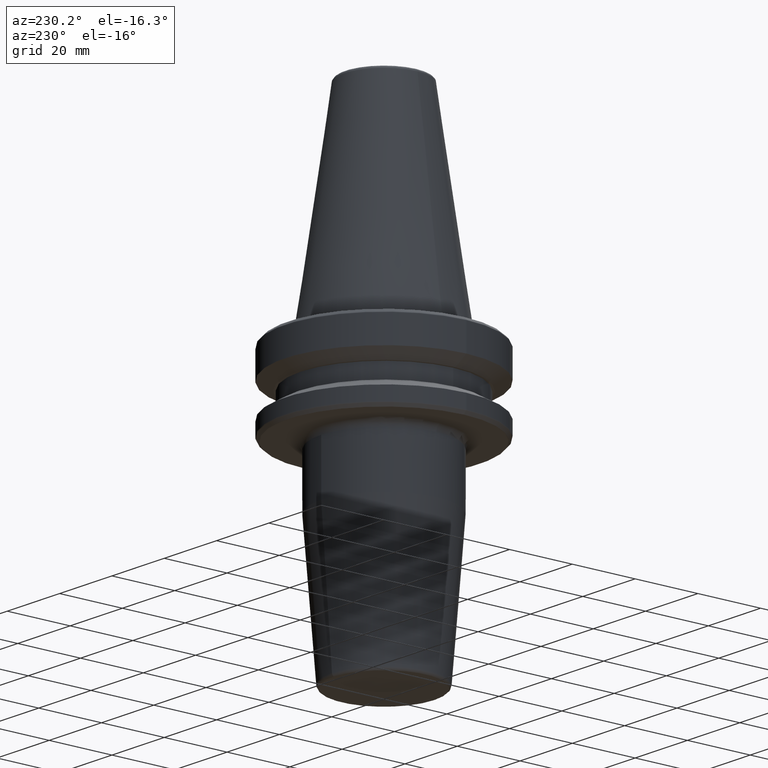
[diagram: clean part render]
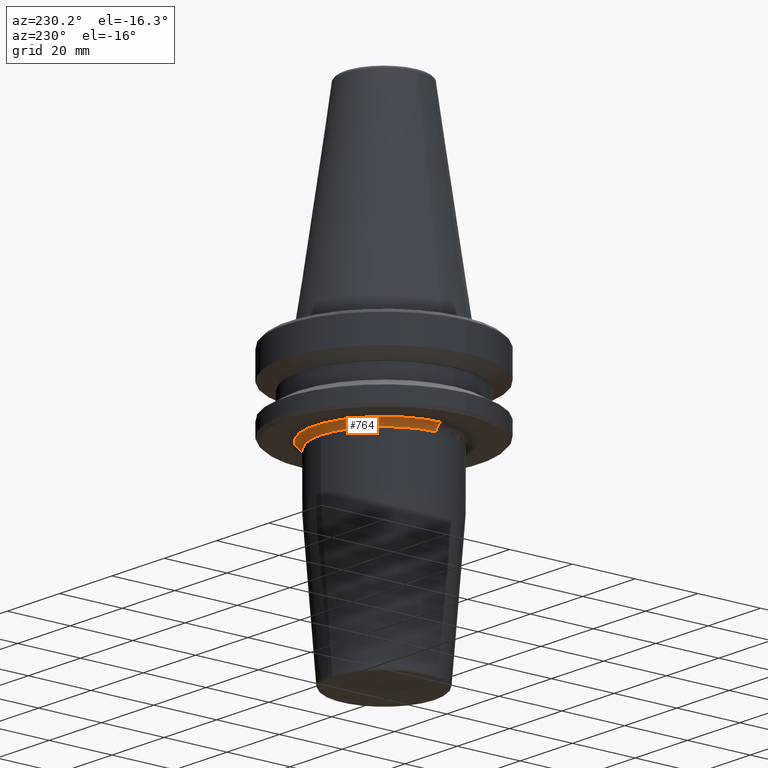
[diagram: same view with one face highlighted and labeled with its STEP entity id]
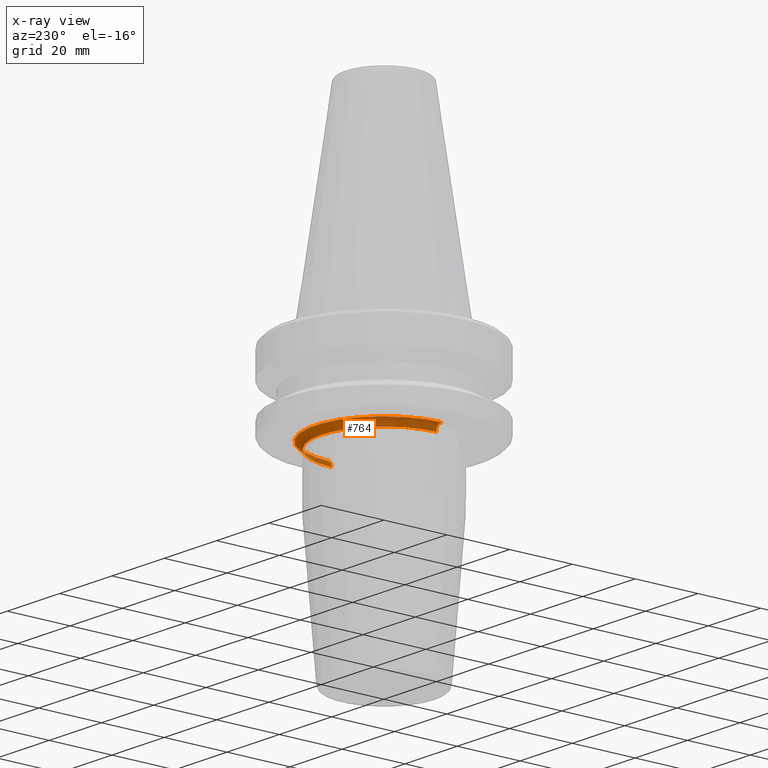
[diagram: x-ray of the same camera — body ghosted, the highlighted face saturated]
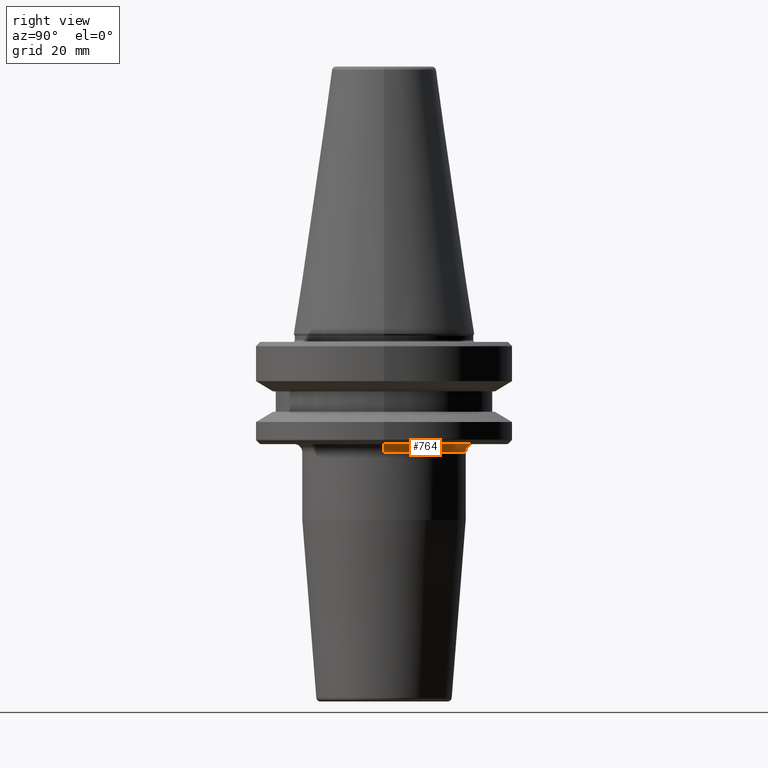
[diagram: same view with one face highlighted and labeled with its STEP entity id]
A machine part, auxiliary view. The second image highlights one B-rep face of the part: STEP entity #764.
The next image is the same camera in x-ray: the body ghosted, the highlighted face saturated — about 6% of this face is hidden behind the body in this view.
A second angle (right view) of the same face is appended — the face is thin or edge-on in the first view.
In plain terms, the highlighted toroidal blend (fillet) surface has major radius 22 mm and minor (blend) radius 2 mm.
Its self-contained STEP definition (entity closure, byte-faithful):
#12 = VERTEX_POINT ( 'NONE', #796 ) ;
#29 = AXIS2_PLACEMENT_3D ( 'NONE', #386, #977, #281 ) ;
#43 = DIRECTION ( 'NONE',  ( 0.0000000000000000000, 0.0000000000000000000, -1.000000000000000000 ) ) ;
#68 = CIRCLE ( 'NONE', #1004, 19.99999999999999600 ) ;
#71 = DIRECTION ( 'NONE',  ( -1.000000000000000000, 0.0000000000000000000, 0.0000000000000000000 ) ) ;
#73 = EDGE_CURVE ( 'NONE', #934, #1120, #1124, .T. ) ;
#91 = EDGE_CURVE ( 'NONE', #93, #1055, #68, .T. ) ;
#93 = VERTEX_POINT ( 'NONE', #526 ) ;
#154 = EDGE_LOOP ( 'NONE', ( #612, #531, #1107, #762, #192 ) ) ;
#192 = ORIENTED_EDGE ( 'NONE', *, *, #498, .F. ) ;
#211 = CIRCLE ( 'NONE', #768, 2.000000000000001800 ) ;
#218 = DIRECTION ( 'NONE',  ( 0.0000000000000000000, 0.0000000000000000000, -1.000000000000000000 ) ) ;
#223 = CIRCLE ( 'NONE', #394, 19.99999999999999600 ) ;
#269 = AXIS2_PLACEMENT_3D ( 'NONE', #717, #218, #515 ) ;
#281 = DIRECTION ( 'NONE',  ( -1.000000000000000000, 0.0000000000000000000, 0.0000000000000000000 ) ) ;
#349 = TOROIDAL_SURFACE ( 'NONE', #269, 22.00000000000000000, 2.000000000000000000 ) ;
#386 = CARTESIAN_POINT ( 'NONE',  ( 0.0000000000000000000, 4.665321139608974800E-017, -27.00000000000000400 ) ) ;
#394 = AXIS2_PLACEMENT_3D ( 'NONE', #1253, #674, #71 ) ;
#466 = CARTESIAN_POINT ( 'NONE',  ( 22.00000000000000000, 2.740876169520266400E-015, -29.00000000000000400 ) ) ;
#498 = EDGE_CURVE ( 'NONE', #12, #1120, #1090, .T. ) ;
#515 = DIRECTION ( 'NONE',  ( -1.000000000000000000, 0.0000000000000000000, 0.0000000000000000000 ) ) ;
#526 = CARTESIAN_POINT ( 'NONE',  ( 0.0000000000000000000, 19.99999999999999600, -29.00000000000000400 ) ) ;
#531 = ORIENTED_EDGE ( 'NONE', *, *, #91, .F. ) ;
#557 = CARTESIAN_POINT ( 'NONE',  ( 19.99999999999999600, 2.618411489605531300E-015, -29.00000000000000400 ) ) ;
#595 = EDGE_CURVE ( 'NONE', #1055, #12, #211, .T. ) ;
#612 = ORIENTED_EDGE ( 'NONE', *, *, #595, .F. ) ;
#643 = CARTESIAN_POINT ( 'NONE',  ( 0.0000000000000000000, 4.665321139608974800E-017, -29.00000000000000400 ) ) ;
#646 = CARTESIAN_POINT ( 'NONE',  ( -19.99999999999999600, 4.665321139608974800E-017, -29.00000000000000400 ) ) ;
#674 = DIRECTION ( 'NONE',  ( 0.0000000000000000000, 0.0000000000000000000, -1.000000000000000000 ) ) ;
#717 = CARTESIAN_POINT ( 'NONE',  ( 0.0000000000000000000, 4.665321139608974800E-017, -29.00000000000000400 ) ) ;
#762 = ORIENTED_EDGE ( 'NONE', *, *, #73, .T. ) ;
#764 = ADVANCED_FACE ( 'NONE', ( #849 ), #349, .F. ) ;
#768 = AXIS2_PLACEMENT_3D ( 'NONE', #466, #1208, #1254 ) ;
#775 = CARTESIAN_POINT ( 'NONE',  ( -22.00000000000000000, 4.665321139608974800E-017, -27.00000000000000400 ) ) ;
#796 = CARTESIAN_POINT ( 'NONE',  ( 22.00000000000000000, 2.740876169520266400E-015, -27.00000000000000400 ) ) ;
#849 = FACE_OUTER_BOUND ( 'NONE', #154, .T. ) ;
#871 = AXIS2_PLACEMENT_3D ( 'NONE', #1180, #1217, #43 ) ;
#934 = VERTEX_POINT ( 'NONE', #646 ) ;
#977 = DIRECTION ( 'NONE',  ( -0.0000000000000000000, -0.0000000000000000000, 1.000000000000000000 ) ) ;
#1004 = AXIS2_PLACEMENT_3D ( 'NONE', #643, #1016, #1026 ) ;
#1016 = DIRECTION ( 'NONE',  ( 0.0000000000000000000, 0.0000000000000000000, -1.000000000000000000 ) ) ;
#1026 = DIRECTION ( 'NONE',  ( -1.000000000000000000, 0.0000000000000000000, 0.0000000000000000000 ) ) ;
#1055 = VERTEX_POINT ( 'NONE', #557 ) ;
#1090 = CIRCLE ( 'NONE', #29, 22.00000000000000000 ) ;
#1092 = EDGE_CURVE ( 'NONE', #934, #93, #223, .T. ) ;
#1107 = ORIENTED_EDGE ( 'NONE', *, *, #1092, .F. ) ;
#1120 = VERTEX_POINT ( 'NONE', #775 ) ;
#1124 = CIRCLE ( 'NONE', #871, 2.000000000000001800 ) ;
#1180 = CARTESIAN_POINT ( 'NONE',  ( -22.00000000000000000, 4.665321139608974800E-017, -29.00000000000000400 ) ) ;
#1208 = DIRECTION ( 'NONE',  ( -1.224646799147353200E-016, 1.000000000000000000, 0.0000000000000000000 ) ) ;
#1217 = DIRECTION ( 'NONE',  ( -0.0000000000000000000, -1.000000000000000000, -0.0000000000000000000 ) ) ;
#1253 = CARTESIAN_POINT ( 'NONE',  ( 0.0000000000000000000, 4.665321139608974800E-017, -29.00000000000000400 ) ) ;
#1254 = DIRECTION ( 'NONE',  ( -1.000000000000000000, -1.224646799147351500E-016, 0.0000000000000000000 ) ) ;